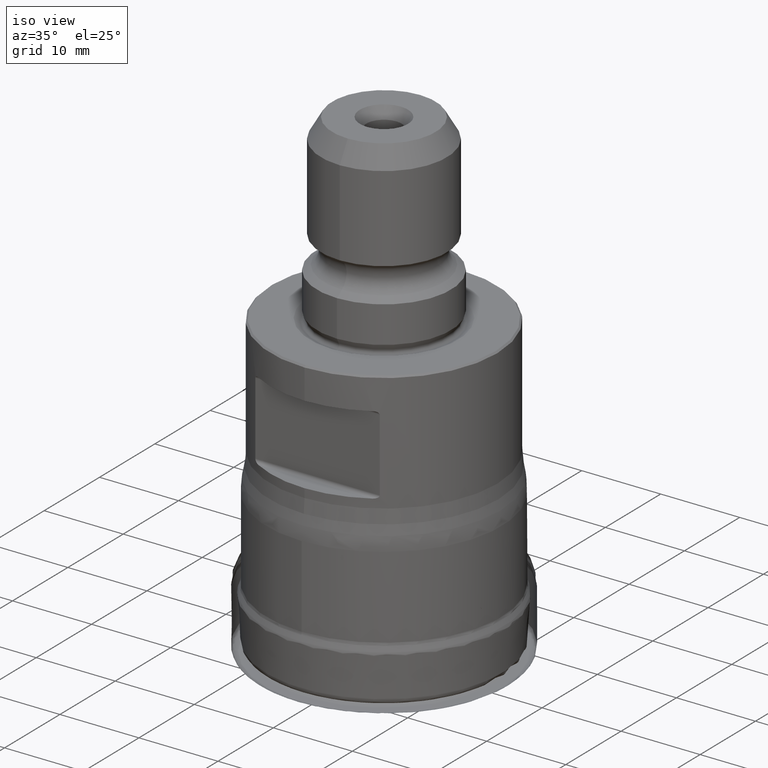
[diagram: clean part render]
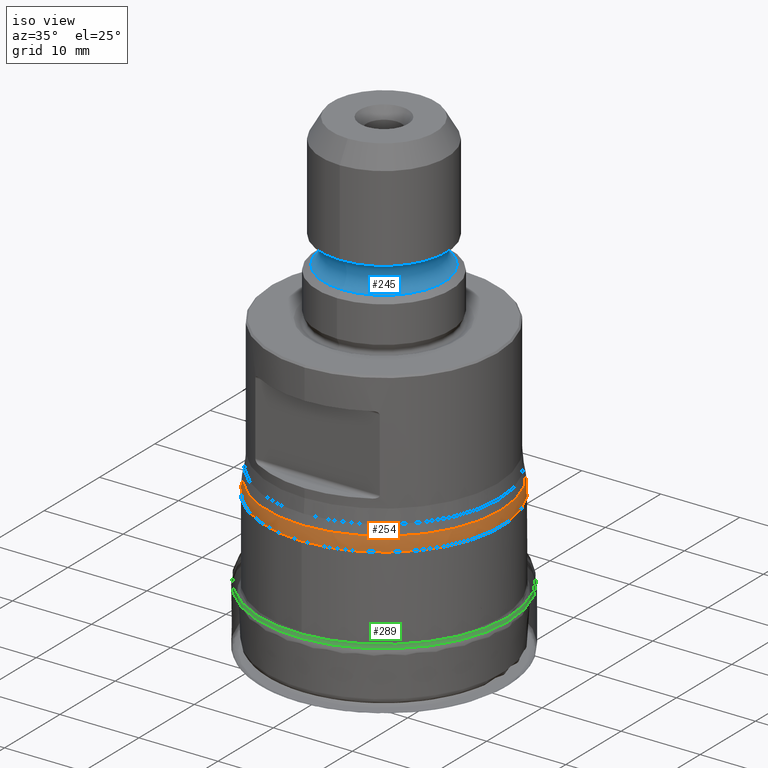
[diagram: same view with three faces highlighted in distinct colors, each labeled with its STEP entity id]
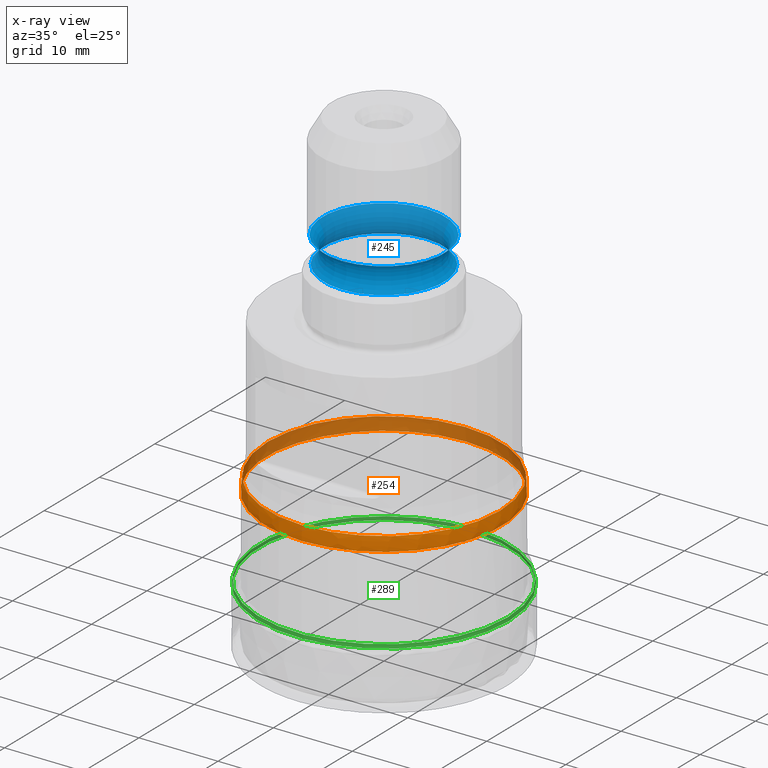
[diagram: x-ray of the same camera — body ghosted, the three highlighted faces saturated]
A machine part, iso view with three faces highlighted in distinct colors.
The next image is the same camera in x-ray (body ghosted, the three faces saturated) — at least one of them is partly hidden behind the body in this view.
Their STEP definitions:

[orange] entity #254 — the highlighted face is a freeform B-spline surface patch.
#170=(
BOUNDED_SURFACE()
B_SPLINE_SURFACE(3,3,((#1785,#1786,#1787,#1788,#1789,#1790,#1791),(#1792,
#1793,#1794,#1795,#1796,#1797,#1798),(#1799,#1800,#1801,#1802,#1803,#1804,
#1805),(#1806,#1807,#1808,#1809,#1810,#1811,#1812)),.UNSPECIFIED.,.F.,.T.,
 .F.)
B_SPLINE_SURFACE_WITH_KNOTS((4,4),(1,3,3,3,1),(0.,1.),(-0.5,0.,0.5,1.,1.5),
 .UNSPECIFIED.)
GEOMETRIC_REPRESENTATION_ITEM()
RATIONAL_B_SPLINE_SURFACE(((1.,0.333333333333333,0.333333333333333,1.,0.333333333333333,
0.333333333333333,1.),(0.997463132061164,0.332487710687055,0.332487710687055,
0.997463132061164,0.332487710687055,0.332487710687055,0.997463132061164),
(0.997463132061164,0.332487710687055,0.332487710687055,0.997463132061164,
0.332487710687055,0.332487710687055,0.997463132061164),(1.,0.333333333333333,
0.333333333333333,1.,0.333333333333333,0.333333333333333,1.)))
REPRESENTATION_ITEM('')
SURFACE()
);
#254=ADVANCED_FACE('',(#354,#355),#170,.T.);
#354=FACE_BOUND('',#468,.T.);
#355=FACE_BOUND('',#469,.T.);
#468=EDGE_LOOP('',(#604));
#469=EDGE_LOOP('',(#605));
#604=ORIENTED_EDGE('',*,*,#783,.F.);
#605=ORIENTED_EDGE('',*,*,#786,.F.);
#710=VERTEX_POINT('',#1566);
#713=VERTEX_POINT('',#1573);
#783=EDGE_CURVE('',#710,#710,#862,.T.);
#786=EDGE_CURVE('',#713,#713,#865,.T.);
#862=CIRCLE('',#979,14.875);
#865=CIRCLE('',#983,14.7230775301221);
#979=AXIS2_PLACEMENT_3D('',#1565,#1093,#1094);
#983=AXIS2_PLACEMENT_3D('',#1572,#1101,#1102);
#1093=DIRECTION('',(0.,-1.17145536458252E-15,-1.));
#1094=DIRECTION('',(0.,1.,-1.16620065611886E-15));
#1101=DIRECTION('',(0.,1.17145536458252E-15,1.));
#1102=DIRECTION('',(0.,-1.,1.1782342872458E-15));
#1565=CARTESIAN_POINT('',(0.,2.13829984748929E-14,18.2533616912611));
#1566=CARTESIAN_POINT('',(0.,14.875,18.253361691261));
#1572=CARTESIAN_POINT('',(0.,2.3417209367672E-14,19.9898434679304));
#1573=CARTESIAN_POINT('',(0.,-14.7230775301221,19.9898434679304));
#1785=CARTESIAN_POINT('',(0.,14.875,18.253361691261));
#1786=CARTESIAN_POINT('',(29.75,14.875,18.253361691261));
#1787=CARTESIAN_POINT('',(29.75,-14.875,18.2533616912611));
#1788=CARTESIAN_POINT('',(0.,-14.875,18.2533616912611));
#1789=CARTESIAN_POINT('',(-29.75,-14.875,18.2533616912611));
#1790=CARTESIAN_POINT('',(-29.75,14.875,18.253361691261));
#1791=CARTESIAN_POINT('',(0.,14.875,18.253361691261));
#1792=CARTESIAN_POINT('',(0.,14.875,18.8358777425398));
#1793=CARTESIAN_POINT('',(29.75,14.875,18.8358777425398));
#1794=CARTESIAN_POINT('',(29.75,-14.875,18.8358777425398));
#1795=CARTESIAN_POINT('',(0.,-14.875,18.8358777425398));
#1796=CARTESIAN_POINT('',(-29.75,-14.875,18.8358777425398));
#1797=CARTESIAN_POINT('',(-29.75,14.875,18.8358777425398));
#1798=CARTESIAN_POINT('',(0.,14.875,18.8358777425398));
#1799=CARTESIAN_POINT('',(0.,14.8242303808884,19.416177144377));
#1800=CARTESIAN_POINT('',(29.6484607617767,14.8242303808884,19.416177144377));
#1801=CARTESIAN_POINT('',(29.6484607617767,-14.8242303808884,19.416177144377));
#1802=CARTESIAN_POINT('',(0.,-14.8242303808883,19.416177144377));
#1803=CARTESIAN_POINT('',(-29.6484607617767,-14.8242303808884,19.416177144377));
#1804=CARTESIAN_POINT('',(-29.6484607617767,14.8242303808884,19.416177144377));
#1805=CARTESIAN_POINT('',(0.,14.8242303808884,19.416177144377));
#1806=CARTESIAN_POINT('',(0.,14.7230775301221,19.9898434679303));
#1807=CARTESIAN_POINT('',(29.4461550602442,14.7230775301221,19.9898434679303));
#1808=CARTESIAN_POINT('',(29.4461550602442,-14.7230775301221,19.9898434679304));
#1809=CARTESIAN_POINT('',(0.,-14.7230775301221,19.9898434679304));
#1810=CARTESIAN_POINT('',(-29.4461550602442,-14.7230775301221,19.9898434679304));
#1811=CARTESIAN_POINT('',(-29.4461550602442,14.7230775301221,19.9898434679303));
#1812=CARTESIAN_POINT('',(0.,14.7230775301221,19.9898434679303));

[blue] entity #245 — the highlighted toroidal blend (fillet) surface has major radius 8.75 mm and minor (blend) radius 2 mm.
#172=TOROIDAL_SURFACE('',#1006,8.75,2.00000000000001);
#245=ADVANCED_FACE('',(#336,#337),#172,.F.);
#336=FACE_BOUND('',#450,.T.);
#337=FACE_BOUND('',#451,.T.);
#450=EDGE_LOOP('',(#586));
#451=EDGE_LOOP('',(#587));
#586=ORIENTED_EDGE('',*,*,#812,.F.);
#587=ORIENTED_EDGE('',*,*,#811,.T.);
#738=VERTEX_POINT('',#1762);
#739=VERTEX_POINT('',#1765);
#811=EDGE_CURVE('',#738,#738,#878,.T.);
#812=EDGE_CURVE('',#739,#739,#879,.T.);
#878=CIRCLE('',#1003,7.6028471272979);
#879=CIRCLE('',#1005,7.74999999999999);
#1003=AXIS2_PLACEMENT_3D('',#1761,#1145,#1146);
#1005=AXIS2_PLACEMENT_3D('',#1764,#1149,#1150);
#1006=AXIS2_PLACEMENT_3D('',#1766,#1151,#1152);
#1145=DIRECTION('',(0.,1.17145536458252E-15,1.));
#1146=DIRECTION('',(0.,-1.,9.12670449336439E-16));
#1149=DIRECTION('',(0.,1.17145536458252E-15,1.));
#1150=DIRECTION('',(0.,-1.,8.95341148891256E-16));
#1151=DIRECTION('',(0.,1.17145536458252E-15,1.));
#1152=DIRECTION('',(0.,-1.,1.29095700537809E-15));
#1761=CARTESIAN_POINT('',(0.,5.18113541950779E-14,44.2281932043925));
#1762=CARTESIAN_POINT('',(0.,-7.60284712729785,44.2281932043925));
#1764=CARTESIAN_POINT('',(0.,5.57595745187161E-14,47.5985481005394));
#1765=CARTESIAN_POINT('',(0.,-7.74999999999994,47.5985481005394));
#1766=CARTESIAN_POINT('',(0.,5.37305543084601E-14,45.8664972929705));

[green] entity #289 — the highlighted face is a SurfaceOfRevolution surface.
#123=SURFACE_OF_REVOLUTION('',#958,#147);
#147=AXIS1_PLACEMENT('',#1983,#1284);
#289=ADVANCED_FACE('',(#404,#405),#123,.F.);
#404=FACE_BOUND('',#526,.T.);
#405=FACE_BOUND('',#527,.T.);
#526=EDGE_LOOP('',(#684));
#527=EDGE_LOOP('',(#685));
#684=ORIENTED_EDGE('',*,*,#845,.T.);
#685=ORIENTED_EDGE('',*,*,#846,.F.);
#766=VERTEX_POINT('',#1971);
#767=VERTEX_POINT('',#1978);
#845=EDGE_CURVE('',#766,#766,#904,.T.);
#846=EDGE_CURVE('',#767,#767,#905,.T.);
#904=CIRCLE('',#1058,15.7135809539958);
#905=CIRCLE('',#1059,15.788019177806);
#958=B_SPLINE_CURVE_WITH_KNOTS('',3,(#1979,#1980,#1981,#1982),
 .UNSPECIFIED.,.F.,.F.,(4,4),(0.,1.),.UNSPECIFIED.);
#1058=AXIS2_PLACEMENT_3D('',#1970,#1279,#1280);
#1059=AXIS2_PLACEMENT_3D('',#1977,#1282,#1283);
#1279=DIRECTION('',(0.,0.,1.));
#1280=DIRECTION('',(1.,0.,0.));
#1282=DIRECTION('',(0.,0.,1.));
#1283=DIRECTION('',(1.,0.,0.));
#1284=DIRECTION('',(0.,0.,1.));
#1970=CARTESIAN_POINT('',(0.,0.,8.08804427679965));
#1971=CARTESIAN_POINT('',(15.7135809539958,0.,8.08804427679965));
#1977=CARTESIAN_POINT('',(0.,0.,7.62218216304499));
#1978=CARTESIAN_POINT('',(15.788019177806,0.,7.62218216304499));
#1979=CARTESIAN_POINT('',(15.7822773260615,-0.425760513919937,7.62218216294351));
#1980=CARTESIAN_POINT('',(15.7359608529656,-0.472359172585321,7.77240801522552));
#1981=CARTESIAN_POINT('',(15.7101819466943,-0.515859571774195,7.92908389586656));
#1982=CARTESIAN_POINT('',(15.7037580463763,-0.55552643379884,8.08804427679965));
#1983=CARTESIAN_POINT('',(0.,0.,0.));